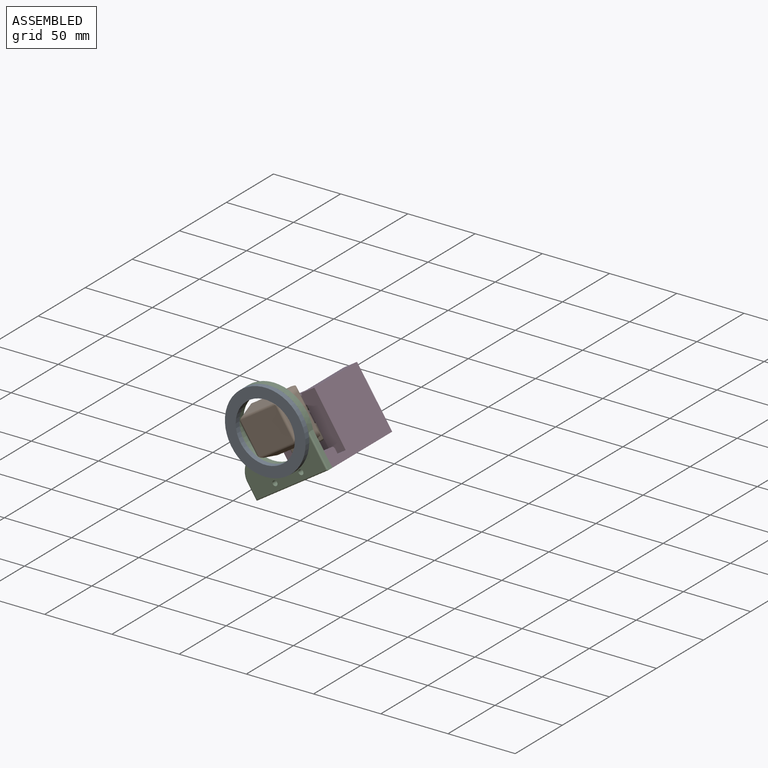
[diagram: assembled view]
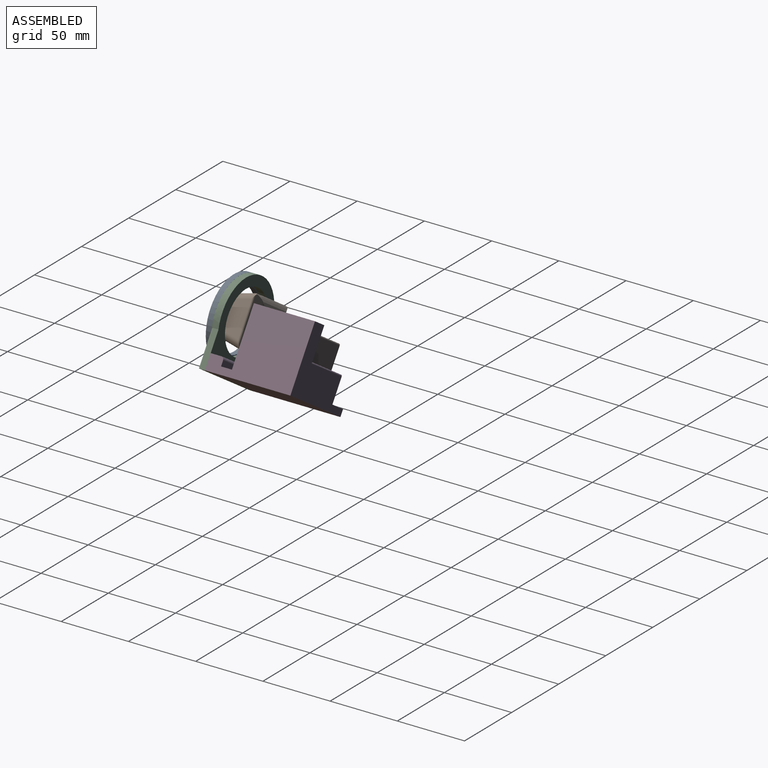
[diagram: assembled view, second angle]
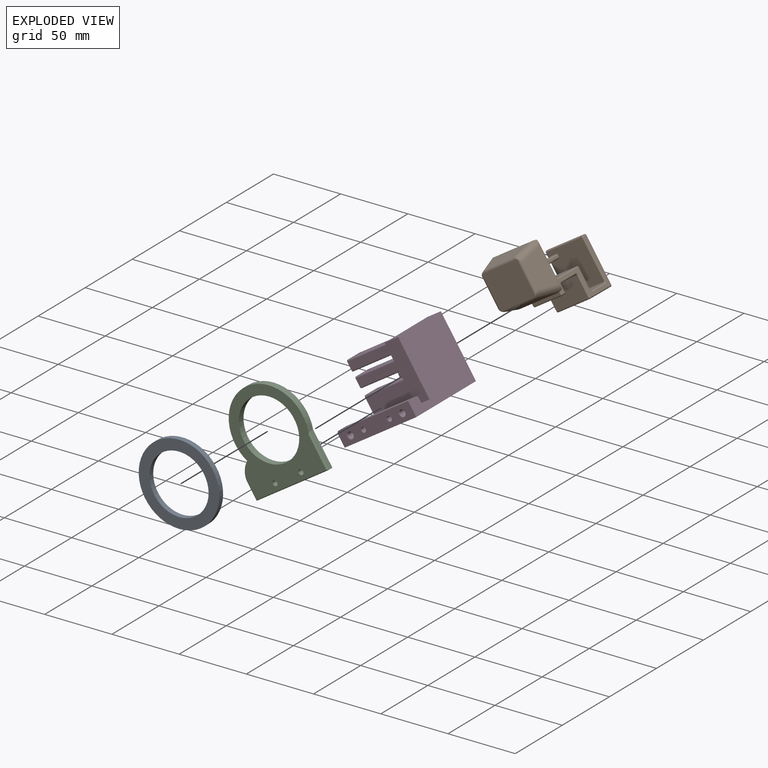
[diagram: exploded view]
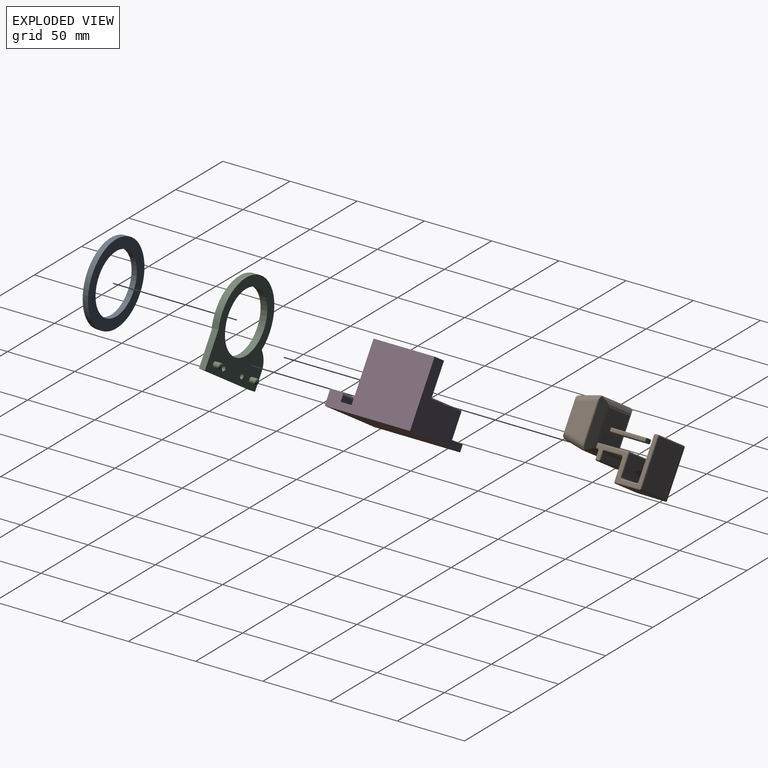
[diagram: exploded view, second angle]
ASSEMBLY  parts=4 mates=3
PART A: 4 faces, bbox 60x4x60 mm
  f0: cylinder r=22mm len=44mm, axis (0,1,0), area 552.9mm2, adj f2,f3
  f1: cylinder r=30mm len=60mm, axis (0,1,0), area 754mm2, adj f2,f3
  f2: plane 60x60mm, normal (0,-1,0), area 1306.9mm2, adj f0,f1
  f3: plane 60x60mm, normal (0,1,0), area 1306.9mm2, adj f0,f1
PART B: 111 faces, bbox 65.7x46.3x49.9 mm
  f0: plane 34x31.78mm, normal (-1,0,0), area 1080.4mm2, adj f30,f32,f35,f36
  f1: plane 30.75x25.04mm, normal (1,0,0), area 770mm2, adj f96,f97,f98,f99
  f2: plane 26.26x25.39mm, normal (-1,0,0), area 546.7mm2, adj f10,f14,f19,f21,f22,f23,f26,f27
  f3: plane 31.78x19.5mm, normal (0,0,-1), area 579.5mm2, adj f34,f35,f44,f45
  f4: plane 27.66x15.26mm, normal (1,0,0), area 422mm2, adj f43,f44,f55,f56
  f5: plane 27.24x13.1mm, normal (0,0,-1), area 338.6mm2, adj f54,f55,f63,f64
  f6: plane 24.05x5mm, normal (-1,0,0), area 120.2mm2, adj f53,f62,f63,f67
  f7: plane 24.05x2mm, normal (0,0,-1), area 47.7mm2, adj f51,f52,f61,f62
  f8: plane 23.62x5mm, normal (1,0,0), area 118.1mm2, adj f41,f42,f50,f51
  f9: plane 23.2x1mm, normal (0,0,-1), area 23.1mm2, adj f10,f33,f40,f41
  f10: plane 35.3x2.09mm, normal (-0.71,0,-0.71), area 92.9mm2, adj f2,f9,f24,f28,f100,f102,f104
  f11: plane 31.1x14.76mm, normal (0.21,0,-0.98), area 422.2mm2, adj f98,f104,f109,f110
  f12: plane 31.1x14.76mm, normal (0.21,0,0.98), area 422.2mm2, adj f97,f103,f107,f108
  f13: plane 35.3x0.62mm, normal (-0.71,0,0.71), area 30mm2, adj f24,f28,f101,f103
  f14: plane 28.14x24.36mm, normal (0,0,1), area 622.8mm2, adj f2,f72,f74,f75
  f15: plane 28.14x15.26mm, normal (-1,0,0), area 429.3mm2, adj f75,f76,f79,f80
  f16: plane 30.93x11.23mm, normal (0,0,1), area 334.1mm2, adj f80,f81,f85,f86
  f17: plane 31.36x30mm, normal (1,0,0), area 940.7mm2, adj f86,f87,f91,f92
  f18: plane 31.78x2mm, normal (0,0,1), area 63.1mm2, adj f32,f88,f92,f94
  f19: plane 26.22x4.2mm, normal (0,0,1), area 110.2mm2, adj f2,f20,f69,f71
  f20: plane 6.2x3.12mm, normal (-1,0,0), area 18.5mm2, adj f19,f21,f22,f23,f68,f69,f70,f71
  f21: plane 26.22x4.2mm, normal (0,0,-1), area 110.2mm2, adj f2,f20,f68,f70
  f22: plane 26.22x1.12mm, normal (0,1,0), area 29.2mm2, adj f2,f20,f70,f71
  f23: plane 26.22x1.12mm, normal (0,-1,0), area 29.2mm2, adj f2,f20,f68,f69
  f24: plane 34.34x5.16mm, normal (-0.87,0.5,0), area 186.1mm2, adj f10,f13,f100,f101,f103,f104,f105,f108
  f25: plane 26.11x16.48mm, normal (0.21,0.98,0), area 381.2mm2, adj f96,f105,f108,f110
  f26: plane 41.49x34mm, normal (0.11,0.99,0), area 205.5mm2, adj f2,f30,f33,f34,f37,f42,f43,f48
  f27: plane 41.49x34mm, normal (0.11,-0.99,0), area 205.5mm2, adj f2,f36,f40,f45,f46,f50,f56,f60
  f28: plane 34.34x5.16mm, normal (-0.87,-0.5,0), area 186.1mm2, adj f10,f13,f101,f102,f103,f104,f106,f107
  f29: plane 26.11x16.48mm, normal (0.21,-0.98,0), area 381.2mm2, adj f99,f106,f107,f109
  f30: cylinder r=1mm len=34mm, axis (0,0,-1), area 57mm2, adj f0,f26,f31,f95
  f31: sphere r=1mm, area 1.7mm2, adj f30,f34,f35
  f32: cylinder r=1mm len=31.78mm, axis (0,1,0), area 49.9mm2, adj f0,f18,f82,f95
  f33: cylinder r=1mm len=1.11mm, axis (0.99,-0.11,0), area 1.5mm2, adj f2,f9,f26,f37
  f34: cylinder r=1mm len=19.61mm, axis (0.99,-0.11,0), area 30.8mm2, adj f3,f26,f31,f38
  f35: cylinder r=1mm len=31.78mm, axis (0,-1,0), area 49.9mm2, adj f0,f3,f31,f39
  f36: cylinder r=1mm len=34mm, axis (0,0,1), area 57mm2, adj f0,f27,f39,f82
  f37: bspline ~2.35x2mm, area 3.3mm2, adj f26,f33,f41,f42
  f38: sphere r=1mm, area 1.5mm2, adj f34,f43,f44
  f39: sphere r=1mm, area 1.7mm2, adj f35,f36,f45
  f40: cylinder r=1mm len=1.11mm, axis (-0.99,-0.11,0), area 1.5mm2, adj f2,f9,f27,f46
  f41: cylinder r=1mm len=23.62mm, axis (0,1,0), area 36.8mm2, adj f8,f9,f37,f46
  f42: cylinder r=1mm len=5mm, axis (0,0,1), area 7.3mm2, adj f8,f26,f37,f47
  f43: cylinder r=1mm len=15.26mm, axis (0,0,1), area 22.4mm2, adj f4,f26,f38,f48
  f44: cylinder r=1mm len=27.66mm, axis (0,1,0), area 43.4mm2, adj f3,f4,f38,f49
  f45: cylinder r=1mm len=19.61mm, axis (-0.99,-0.11,0), area 30.8mm2, adj f3,f27,f39,f49
  f46: bspline ~2.35x2.35mm, area 3.3mm2, adj f27,f40,f41,f50
  f47: sphere r=1mm, area 1.5mm2, adj f42,f51,f52
  f48: bspline ~2.35x2.35mm, area 3.3mm2, adj f26,f43,f54,f55
  f49: sphere r=1mm, area 1.5mm2, adj f44,f45,f56
  f50: cylinder r=1mm len=5mm, axis (0,0,-1), area 7.3mm2, adj f8,f27,f46,f57
  f51: cylinder r=1mm len=23.62mm, axis (0,1,0), area 37.1mm2, adj f7,f8,f47,f57
  f52: cylinder r=1mm len=2.11mm, axis (0.99,-0.11,0), area 3.2mm2, adj f7,f26,f47,f58
  f53: cylinder r=1mm len=5mm, axis (0,0,-1), area 8.4mm2, adj f6,f26,f58,f59
  f54: cylinder r=1mm len=13.2mm, axis (0.99,-0.11,0), area 20.7mm2, adj f5,f26,f48,f59
  f55: cylinder r=1mm len=27.66mm, axis (0,-1,0), area 43.1mm2, adj f4,f5,f48,f60
  f56: cylinder r=1mm len=15.26mm, axis (0,0,-1), area 22.4mm2, adj f4,f27,f49,f60
  f57: sphere r=1mm, area 1.5mm2, adj f50,f51,f61
  f58: sphere r=1mm, area 1.7mm2, adj f52,f53,f62
  f59: bspline ~2.35x2mm, area 3.5mm2, adj f26,f53,f54,f63
  f60: bspline ~2.35x2mm, area 3.3mm2, adj f27,f55,f56,f64
  f61: cylinder r=1mm len=2.11mm, axis (-0.99,-0.11,0), area 3.2mm2, adj f7,f27,f57,f65
  f62: cylinder r=1mm len=24.05mm, axis (0,-1,0), area 37.8mm2, adj f6,f7,f58,f65
  f63: cylinder r=1mm len=24.47mm, axis (0,-1,0), area 38.1mm2, adj f5,f6,f59,f66
  f64: cylinder r=1mm len=13.2mm, axis (-0.99,-0.11,0), area 20.7mm2, adj f5,f27,f60,f66
  f65: sphere r=1mm, area 1.7mm2, adj f61,f62,f67
  f66: bspline ~2.35x2.35mm, area 3.5mm2, adj f27,f63,f64,f67
  f67: cylinder r=1mm len=5mm, axis (0,0,1), area 8.4mm2, adj f6,f27,f65,f66
  f68: cylinder r=1mm len=26.22mm, axis (1,0,0), area 41.2mm2, adj f2,f20,f21,f23
  f69: cylinder r=1mm len=26.22mm, axis (1,0,0), area 41.2mm2, adj f2,f19,f20,f23
  f70: cylinder r=1mm len=26.22mm, axis (-1,0,0), area 41.2mm2, adj f2,f20,f21,f22
  f71: cylinder r=1mm len=26.22mm, axis (-1,0,0), area 41.2mm2, adj f2,f19,f20,f22
  f72: cylinder r=1mm len=24.47mm, axis (0.99,0.11,0), area 38.4mm2, adj f2,f14,f27,f73
  f73: sphere r=1mm, area 1.7mm2, adj f72,f75,f76
  f74: cylinder r=1mm len=24.47mm, axis (-0.99,0.11,0), area 38.4mm2, adj f2,f14,f26,f77
  f75: cylinder r=1mm len=28.14mm, axis (0,1,0), area 44.2mm2, adj f14,f15,f73,f77
  f76: cylinder r=1mm len=15.26mm, axis (0,0,1), area 25.6mm2, adj f15,f27,f73,f78
  f77: sphere r=1mm, area 1.7mm2, adj f74,f75,f79
  f78: bspline ~2.35x2.09mm, area 3.5mm2, adj f27,f76,f80,f81
  f79: cylinder r=1mm len=15.26mm, axis (0,0,-1), area 25.6mm2, adj f15,f26,f77,f83
  f80: cylinder r=1mm len=28.56mm, axis (0,-1,0), area 44.5mm2, adj f15,f16,f78,f83
  f81: cylinder r=1mm len=11.34mm, axis (0.99,0.11,0), area 17.7mm2, adj f16,f27,f78,f84
  f82: sphere r=1mm, area 1.7mm2, adj f32,f36,f88
  f83: bspline ~2.11x2mm, area 3.5mm2, adj f26,f79,f80,f85
  f84: bspline ~2.35x2.09mm, area 3.3mm2, adj f27,f81,f86,f87
  f85: cylinder r=1mm len=11.34mm, axis (-0.99,0.11,0), area 17.7mm2, adj f16,f26,f83,f89
  f86: cylinder r=1mm len=31.36mm, axis (0,1,0), area 48.9mm2, adj f16,f17,f84,f89
  f87: cylinder r=1mm len=30mm, axis (0,0,-1), area 44mm2, adj f17,f27,f84,f90
  f88: cylinder r=1mm len=2.11mm, axis (0.99,0.11,0), area 3.2mm2, adj f18,f27,f82,f90
  f89: bspline ~2.35x2mm, area 3.3mm2, adj f26,f85,f86,f91
  f90: sphere r=1mm, area 1.5mm2, adj f87,f88,f92
  f91: cylinder r=1mm len=30mm, axis (0,0,1), area 44mm2, adj f17,f26,f89,f93
  f92: cylinder r=1mm len=31.36mm, axis (0,-1,0), area 49.3mm2, adj f17,f18,f90,f93
  f93: sphere r=1mm, area 1.5mm2, adj f91,f92,f94
  f94: cylinder r=1mm len=2.11mm, axis (-0.99,0.11,0), area 3.2mm2, adj f18,f26,f93,f95
  f95: sphere r=1mm, area 1.7mm2, adj f30,f32,f94
  f96: cylinder r=2mm len=25.45mm, axis (0,0,1), area 61.4mm2, adj f1,f25,f97,f98,f108,f110
  f97: cylinder r=2mm len=31.16mm, axis (0,1,0), area 77mm2, adj f1,f12,f96,f99,f107,f108
  f98: cylinder r=2mm len=31.16mm, axis (0,-1,0), area 77mm2, adj f1,f11,f96,f99,f109,f110
  f99: cylinder r=2mm len=25.45mm, axis (0,0,-1), area 61.4mm2, adj f1,f29,f97,f98,f107,f109
  f100: bspline ~32.56x2.48mm, area 71.9mm2, adj f2,f10,f24,f101
  f101: bspline ~36.44x3.54mm, area 114.5mm2, adj f2,f13,f24,f28,f100,f102
  f102: bspline ~32.56x2.48mm, area 71.9mm2, adj f2,f10,f28,f101
  f103: bspline ~46.2x4.57mm, area 177.7mm2, adj f12,f13,f24,f28,f107,f108
  f104: bspline ~46.2x4.57mm, area 177.7mm2, adj f10,f11,f24,f28,f109,f110
  f105: cylinder r=1.31mm len=32.49mm, axis (0,0,-1), area 48.3mm2, adj f24,f25,f108,f110
  f106: cylinder r=1.31mm len=32.49mm, axis (0,0,-1), area 48.3mm2, adj f28,f29,f107,f109
  f107: cylinder r=5mm len=20.21mm, axis (0.96,0.2,-0.2), area 143.5mm2, adj f12,f28,f29,f97,f99,f103,f106
  f108: cylinder r=5mm len=20.21mm, axis (-0.96,0.2,0.2), area 143.5mm2, adj f12,f24,f25,f96,f97,f103,f105
  f109: cylinder r=5mm len=20.21mm, axis (-0.96,-0.2,-0.2), area 143.5mm2, adj f11,f28,f29,f98,f99,f104,f106
  f110: cylinder r=5mm len=20.21mm, axis (0.96,-0.2,0.2), area 143.5mm2, adj f11,f24,f25,f96,f98,f104,f105
PART C: 20 faces, bbox 67.1x11.9x68.6 mm
  f0: plane 26.22x4mm, normal (-1,0,0), area 104.9mm2, adj f1,f3,f4,f14
  f1: plane 63.5x4mm, normal (0,0,-1), area 254mm2, adj f0,f3,f5,f15
  f2: plane 65.99x64.5mm, normal (0,1,0), area 1945.8mm2, adj f4,f6,f14,f15,f16,f17,f18,f19
  f3: plane 68.61x67.11mm, normal (0,-1,0), area 2032.2mm2, adj f0,f1,f4,f5,f6,f7,f9,f13
  f4: cylinder r=30mm len=60mm, axis (0,-1,0), area 589.4mm2, adj f0,f2,f3,f13,f14,f17
  f5: plane 12.51x4mm, normal (1,0,0), area 50mm2, adj f1,f3,f13,f16
  f6: cylinder r=22.5mm len=45mm, axis (0,-1,0), area 706.9mm2, adj f2,f3
  f7: cylinder r=2.1mm len=4.2mm, axis (0,1,0), area 52.8mm2, adj f3,f12
  f8: plane 2.2x2.2mm, normal (0,-1,0), area 3.8mm2, adj f12
  f9: cylinder r=2.1mm len=4.2mm, axis (0,1,0), area 52.8mm2, adj f3,f11
  f10: plane 2.2x2.2mm, normal (0,-1,0), area 3.8mm2, adj f11
  f11: torus R=1.1mm, axis (0,1,0), area 17.1mm2, adj f9,f10
  f12: torus R=1.1mm, axis (0,1,0), area 17.1mm2, adj f7,f8
  f13: bspline ~14x14mm, area 62.6mm2, adj f3,f4,f5,f17
  f14: cylinder r=1mm len=26.22mm, axis (0,0,-1), area 38.6mm2, adj f0,f2,f4,f15
  f15: cylinder r=1mm len=63.5mm, axis (1,0,0), area 98.2mm2, adj f1,f2,f14,f16
  f16: cylinder r=1mm len=12.51mm, axis (0,0,1), area 18.9mm2, adj f2,f5,f15,f17
  f17: bspline ~15.97x9.18mm, area 23.9mm2, adj f2,f4,f13,f16
  f18: cylinder r=1.9mm len=5mm, axis (0,1,0), area 59.6mm2, adj f2,f3
  f19: cylinder r=1.9mm len=5mm, axis (0,1,0), area 59.6mm2, adj f2,f3
PART D: 67 faces, bbox 63.5x63.5x47.8 mm
  f0: plane 63.5x53.5mm, normal (0,0,1), area 2130.8mm2, adj f2,f3,f5,f9,f10,f11,f12,f13
  f1: plane 38.1x12.29mm, normal (0,0,1), area 448.9mm2, adj f7,f8,f9,f17,f20,f21,f22,f23
  f2: plane 63.5x47.8mm, normal (0,-1,0), area 1519mm2, adj f0,f3,f5,f6,f12,f16,f17,f18
  f3: plane 63.5x9.09mm, normal (1,0,0), area 362.7mm2, adj f0,f2,f4,f6,f28,f34
  f4: plane 63.5x11.09mm, normal (0,1,0), area 631.4mm2, adj f3,f5,f6,f27,f34,f35,f36,f63
  f5: plane 63.5x47.8mm, normal (-1,0,0), area 2321.8mm2, adj f0,f2,f4,f6,f18,f19,f27,f28
  f6: plane 63.5x63.5mm, normal (0,0,-1), area 4032.3mm2, adj f2,f3,f4,f5
  f7: cylinder r=1mm len=38.1mm, axis (-1,0,0), area 59.8mm2, adj f1,f9,f11,f17
  f8: cylinder r=1mm len=38.1mm, axis (-1,0,0), area 59.8mm2, adj f1,f9,f10,f17
  f9: plane 17.46x14.29mm, normal (1,0,0), area 229.8mm2, adj f0,f1,f7,f8,f10,f11,f20,f22
  f10: plane 38.1x16.46mm, normal (0,-1,0), area 627.2mm2, adj f0,f8,f9,f17
  f11: plane 38.1x16.46mm, normal (0,1,0), area 627.2mm2, adj f0,f7,f9,f17
  f12: plane 19.05x4.76mm, normal (1,0,0), area 90.3mm2, adj f0,f2,f13,f14,f15,f16
  f13: plane 38.1x18.05mm, normal (0,1,0), area 687.7mm2, adj f0,f12,f14,f17
  f14: cylinder r=1mm len=38.1mm, axis (-1,0,0), area 59.8mm2, adj f12,f13,f15,f17
  f15: plane 38.1x2.76mm, normal (0,0,1), area 105.3mm2, adj f12,f14,f16,f17
  f16: cylinder r=1mm len=38.1mm, axis (-1,0,0), area 59.8mm2, adj f2,f12,f15,f17
  f17: plane 45.41x42.72mm, normal (1,0,0), area 1375.5mm2, adj f0,f1,f2,f7,f8,f10,f11,f13
  f18: plane 45.41x11.91mm, normal (0,0,1), area 540.7mm2, adj f2,f5,f17,f19
  f19: plane 42.72x11.91mm, normal (0,1,0), area 508.7mm2, adj f0,f5,f17,f18
  f20: plane 6.5x5.86mm, normal (0,-1,0), area 25.7mm2, adj f1,f9,f21,f23,f24,f25,f26
  f21: plane 5.5x0.86mm, normal (1,0,0), area 4.7mm2, adj f1,f20,f22,f26
  f22: plane 6.5x5.86mm, normal (0,1,0), area 25.7mm2, adj f1,f9,f21,f23,f24,f25,f26
  f23: plane 5.5x2.36mm, normal (-1,0,0), area 13mm2, adj f1,f20,f22,f25
  f24: plane 5.5x1.5mm, normal (0,0,1), area 8.3mm2, adj f9,f20,f22,f26
  f25: plane 5.5x3mm, normal (0,0,-1), area 16.5mm2, adj f9,f20,f22,f23
  f26: cylinder r=5mm len=5.5mm, axis (0,-1,0), area 43.2mm2, adj f20,f21,f22,f24
  f27: plane 61.5x8mm, normal (0,0,1), area 492mm2, adj f4,f5,f33,f34
  f28: plane 63.5x4.01mm, normal (0,-1,0), area 254.6mm2, adj f0,f3,f5,f33
  f29: cylinder r=2.3mm len=5.5mm, axis (0,1,0), area 79.5mm2, adj f30,f35
  f30: plane 4.6x4.6mm, normal (0,1,0), area 16.6mm2, adj f29
  f31: cylinder r=2.3mm len=5.5mm, axis (0,1,0), area 79.5mm2, adj f32,f36
  f32: plane 4.6x4.6mm, normal (0,1,0), area 16.6mm2, adj f31
  f33: cylinder r=2mm len=63.5mm, axis (-1,0,0), area 197.2mm2, adj f5,f27,f28,f34
  f34: cylinder r=2mm len=10mm, axis (0,1,0), area 29.1mm2, adj f3,f4,f27,f33
  f35: torus R=2.8mm, axis (0,-1,0), area 12.2mm2, adj f4,f29
  f36: torus R=2.8mm, axis (0,-1,0), area 12.2mm2, adj f4,f31
  f37: plane 38.1x12.29mm, normal (0,0,1), area 448.9mm2, adj f17,f39,f44,f45,f46,f47,f48,f49
  f38: plane 38.1x12.29mm, normal (0,0,-1), area 448.9mm2, adj f17,f41,f42,f45,f46,f47,f48,f49
  f39: cylinder r=1mm len=38.1mm, axis (-1,0,0), area 59.8mm2, adj f17,f37,f40,f45
  f40: plane 38.1x5.94mm, normal (0,-1,0), area 226.2mm2, adj f17,f39,f41,f45
  f41: cylinder r=1mm len=38.1mm, axis (-1,0,0), area 59.8mm2, adj f17,f38,f40,f45
  f42: cylinder r=1mm len=38.1mm, axis (-1,0,0), area 59.8mm2, adj f17,f38,f43,f45
  f43: plane 38.1x5.94mm, normal (0,1,0), area 226.2mm2, adj f17,f42,f44,f45
  f44: cylinder r=1mm len=38.1mm, axis (-1,0,0), area 59.8mm2, adj f17,f37,f43,f45
  f45: plane 14.29x7.94mm, normal (1,0,0), area 112.5mm2, adj f37,f38,f39,f40,f41,f42,f43,f44
  f46: plane 7.94x3.5mm, normal (0,-1,0), area 27.8mm2, adj f37,f38,f47,f49
  f47: plane 7.94x5.5mm, normal (1,0,0), area 43.7mm2, adj f37,f38,f46,f48
  f48: plane 7.94x3.5mm, normal (0,1,0), area 27.8mm2, adj f37,f38,f47,f49
  f49: plane 7.94x5.5mm, normal (-1,0,0), area 43.7mm2, adj f37,f38,f46,f48
  f50: plane 38.1x12.29mm, normal (0,0,-1), area 448.9mm2, adj f17,f52,f57,f58,f59,f60,f61,f62
  f51: plane 38.1x12.29mm, normal (0,0,1), area 448.9mm2, adj f17,f54,f55,f58,f59,f60,f61,f62
  f52: cylinder r=1mm len=38.1mm, axis (-1,0,0), area 59.8mm2, adj f17,f50,f53,f58
  f53: plane 38.1x5.94mm, normal (0,1,0), area 226.2mm2, adj f17,f52,f54,f58
  f54: cylinder r=1mm len=38.1mm, axis (-1,0,0), area 59.8mm2, adj f17,f51,f53,f58
  f55: cylinder r=1mm len=38.1mm, axis (-1,0,0), area 59.8mm2, adj f17,f51,f56,f58
  f56: plane 38.1x5.94mm, normal (0,-1,0), area 226.2mm2, adj f17,f55,f57,f58
  f57: cylinder r=1mm len=38.1mm, axis (-1,0,0), area 59.8mm2, adj f17,f50,f56,f58
  f58: plane 14.29x7.94mm, normal (1,0,0), area 112.5mm2, adj f50,f51,f52,f53,f54,f55,f56,f57
  f59: plane 7.94x3.5mm, normal (0,-1,0), area 27.8mm2, adj f50,f51,f60,f62
  f60: plane 7.94x5.5mm, normal (1,0,0), area 43.7mm2, adj f50,f51,f59,f61
  f61: plane 7.94x3.5mm, normal (0,1,0), area 27.8mm2, adj f50,f51,f60,f62
  f62: plane 7.94x5.5mm, normal (-1,0,0), area 43.7mm2, adj f50,f51,f59,f61
  f63: cylinder r=1.9mm len=7.38mm, axis (0,1,0), area 88.1mm2, adj f4,f64
  f64: cone r=0mm half-angle=59deg, axis (0,1,0), area 13.2mm2, adj f63
  f65: cylinder r=1.9mm len=7.38mm, axis (0,1,0), area 88.1mm2, adj f4,f66
  f66: cone r=0mm half-angle=59deg, axis (0,1,0), area 13.2mm2, adj f65
PLACE A rot(axis=(0,-1,0),30deg) t=(-26.11,4.2,17.74)mm
PLACE B rot(axis=(0.27,-0.27,-0.92),94.7deg) t=(11.65,9.6,-1.77)mm
PLACE C rot(axis=(0.29,0,-0.96),180deg) t=(-8.35,91.25,-14.85)mm
PLACE D rot(axis=(0.29,0,-0.96),180deg) t=(-8.35,91.25,-14.85)mm fixed
MATE fastened C.f19 <-> D.f65  axis (0,1,0) through (-21.68,9.2,-16.93)mm
MATE revolute C.f4 <-> A.f0  axis (0,-1,0) through (-26.11,4.2,17.74)mm
MATE fastened D.f13 <-> B.f0  axis (0,-1,0) through (-18.84,67.94,6.5)mm
